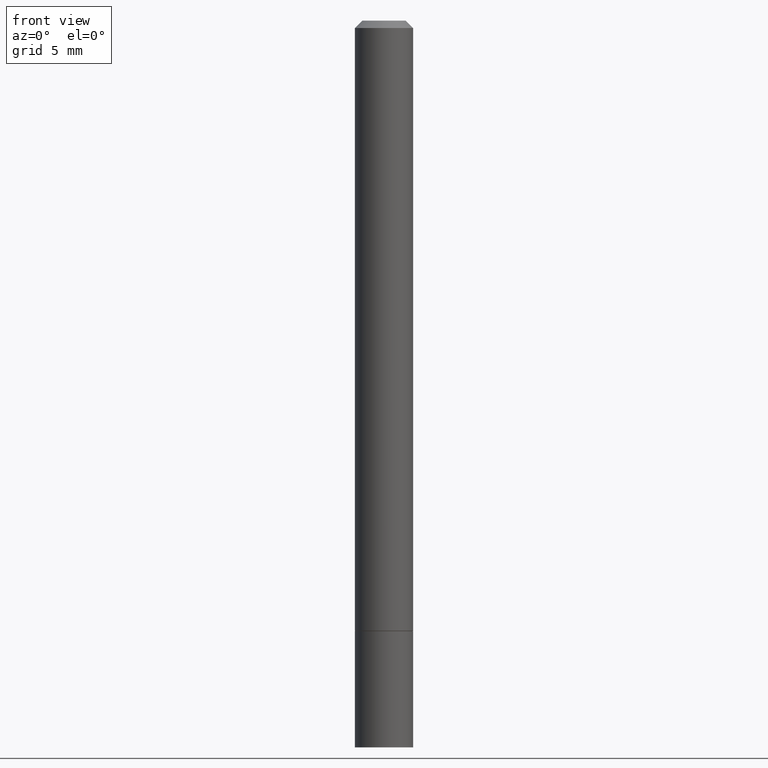
[diagram: clean part render]
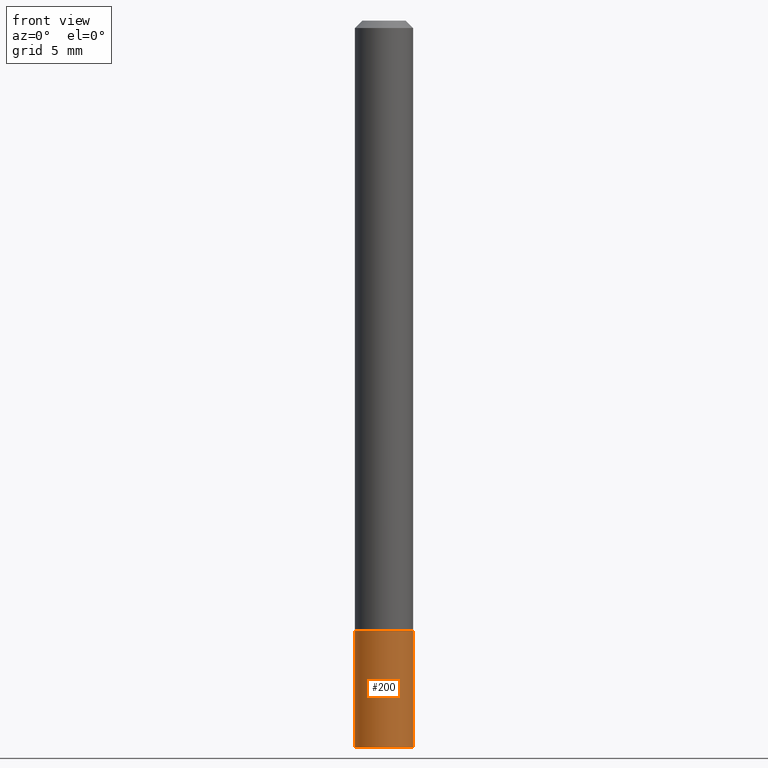
[diagram: same view with one face highlighted and labeled with its STEP entity id]
A machine part, front view. The second image highlights one B-rep face of the part: STEP entity #200.
In plain terms, the highlighted cylindrical surface (edge-blend (fillet) strip) has radius 2.0002 mm, axis along (-0, 0, 1).
Its self-contained STEP definition (entity closure, byte-faithful):
#10 = DIRECTION ( 'NONE',  ( -2.445468806185136877E-29, 3.491481338843145188E-15, 1.000000000000000000 ) ) ;
#19 = EDGE_CURVE ( 'NONE', #267, #217, #162, .T. ) ;
#26 = DIRECTION ( 'NONE',  ( -2.445468806185136597E-29, 3.491481338843145583E-15, 1.000000000000000000 ) ) ;
#29 = CIRCLE ( 'NONE', #318, 0.07875000000000000056 ) ;
#31 = CARTESIAN_POINT ( 'NONE',  ( 0.07875000000000000056, -7.422889326380525053E-15, -1.968500000000000139 ) ) ;
#38 = EDGE_CURVE ( 'NONE', #267, #147, #29, .T. ) ;
#53 = LINE ( 'NONE', #221, #361 ) ;
#80 = DIRECTION ( 'NONE',  ( 1.000000000000000000, -6.982962677686265922E-15, 4.876176775795935232E-29 ) ) ;
#100 = EDGE_LOOP ( 'NONE', ( #212, #322, #180, #185 ) ) ;
#103 = CIRCLE ( 'NONE', #183, 0.07875000000000000056 ) ;
#121 = DIRECTION ( 'NONE',  ( 1.000000000000000000, -6.982962677686261977E-15, 0.000000000000000000 ) ) ;
#122 = CARTESIAN_POINT ( 'NONE',  ( 4.043582671027123201E-29, -5.773164393777141072E-15, -1.653499999999999970 ) ) ;
#123 = CARTESIAN_POINT ( 'NONE',  ( -0.07875000000000000056, 5.595524044110789003E-16, -3.873661383575737792E-30 ) ) ;
#136 = CARTESIAN_POINT ( 'NONE',  ( -0.07875000000000000056, -5.763520300233858771E-15, -1.653499999999999970 ) ) ;
#147 = VERTEX_POINT ( 'NONE', #31 ) ;
#162 = LINE ( 'NONE', #123, #301 ) ;
#170 = DIRECTION ( 'NONE',  ( -2.445468806185136877E-29, 3.491481338843145188E-15, 1.000000000000000000 ) ) ;
#180 = ORIENTED_EDGE ( 'NONE', *, *, #222, .T. ) ;
#183 = AXIS2_PLACEMENT_3D ( 'NONE', #122, #351, #296 ) ;
#184 = CARTESIAN_POINT ( 'NONE',  ( 0.07875000000000000056, -6.323072704644934417E-15, -1.653499999999999970 ) ) ;
#185 = ORIENTED_EDGE ( 'NONE', *, *, #356, .F. ) ;
#191 = CARTESIAN_POINT ( 'NONE',  ( 4.813905344975441835E-29, -6.872981015512731707E-15, -1.968500000000000139 ) ) ;
#200 = ADVANCED_FACE ( 'NONE', ( #254 ), #285, .T. ) ;
#201 = AXIS2_PLACEMENT_3D ( 'NONE', #303, #26, #80 ) ;
#212 = ORIENTED_EDGE ( 'NONE', *, *, #19, .F. ) ;
#217 = VERTEX_POINT ( 'NONE', #136 ) ;
#221 = CARTESIAN_POINT ( 'NONE',  ( 0.07875000000000000056, -5.499083108677934443E-16, 3.839989210939299016E-30 ) ) ;
#222 = EDGE_CURVE ( 'NONE', #147, #344, #53, .T. ) ;
#254 = FACE_OUTER_BOUND ( 'NONE', #100, .T. ) ;
#260 = CARTESIAN_POINT ( 'NONE',  ( -0.07875000000000000056, -5.763520300233858771E-15, -1.968500000000000139 ) ) ;
#267 = VERTEX_POINT ( 'NONE', #260 ) ;
#285 = CYLINDRICAL_SURFACE ( 'NONE', #201, 0.07875000000000000056 ) ;
#296 = DIRECTION ( 'NONE',  ( 1.000000000000000000, -6.982962677686261977E-15, 0.000000000000000000 ) ) ;
#297 = DIRECTION ( 'NONE',  ( -2.445468806185136597E-29, 3.491481338843145583E-15, 1.000000000000000000 ) ) ;
#301 = VECTOR ( 'NONE', #10, 39.37007874015748143 ) ;
#303 = CARTESIAN_POINT ( 'NONE',  ( 0.000000000000000000, 0.000000000000000000, 0.000000000000000000 ) ) ;
#318 = AXIS2_PLACEMENT_3D ( 'NONE', #191, #297, #121 ) ;
#322 = ORIENTED_EDGE ( 'NONE', *, *, #38, .T. ) ;
#344 = VERTEX_POINT ( 'NONE', #184 ) ;
#351 = DIRECTION ( 'NONE',  ( -2.445468806185136597E-29, 3.491481338843145583E-15, 1.000000000000000000 ) ) ;
#356 = EDGE_CURVE ( 'NONE', #217, #344, #103, .T. ) ;
#361 = VECTOR ( 'NONE', #170, 39.37007874015748143 ) ;